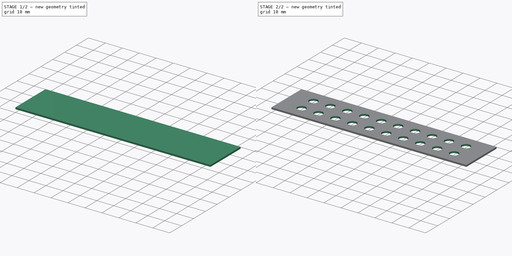
[diagram: build sequence overview — one tinted view per stage of 2, left to right]
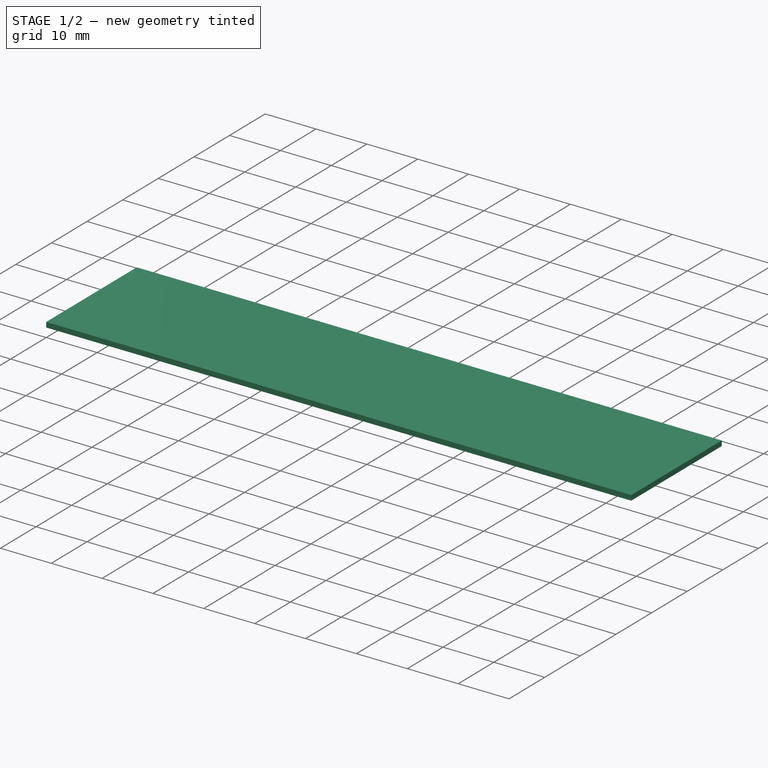
[diagram: stage 1 of 2 — iso view after this stage's code; geometry added in this stage tinted green]
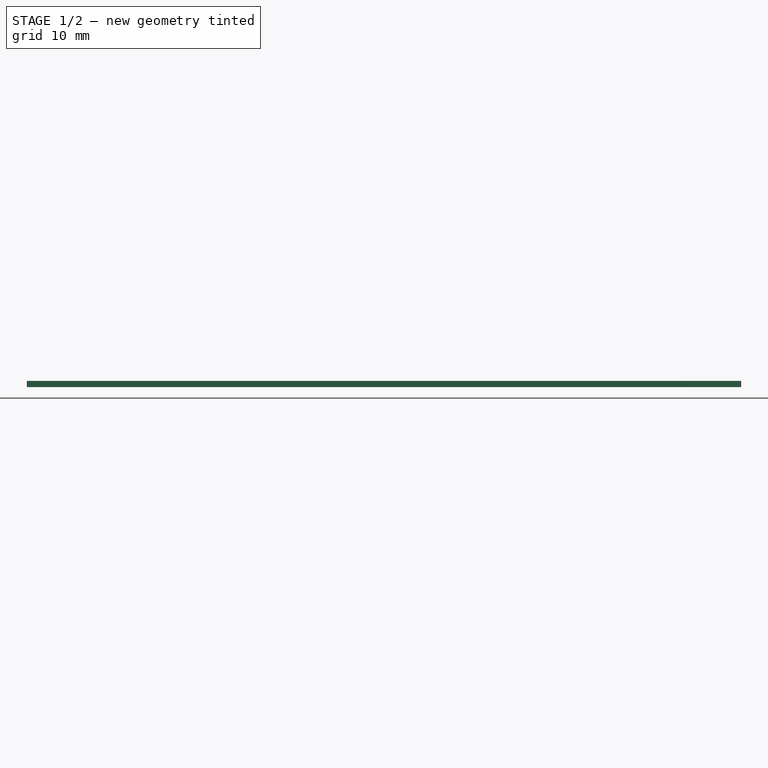
[diagram: stage 1 of 2 — front view after this stage's code; geometry added in this stage tinted green]
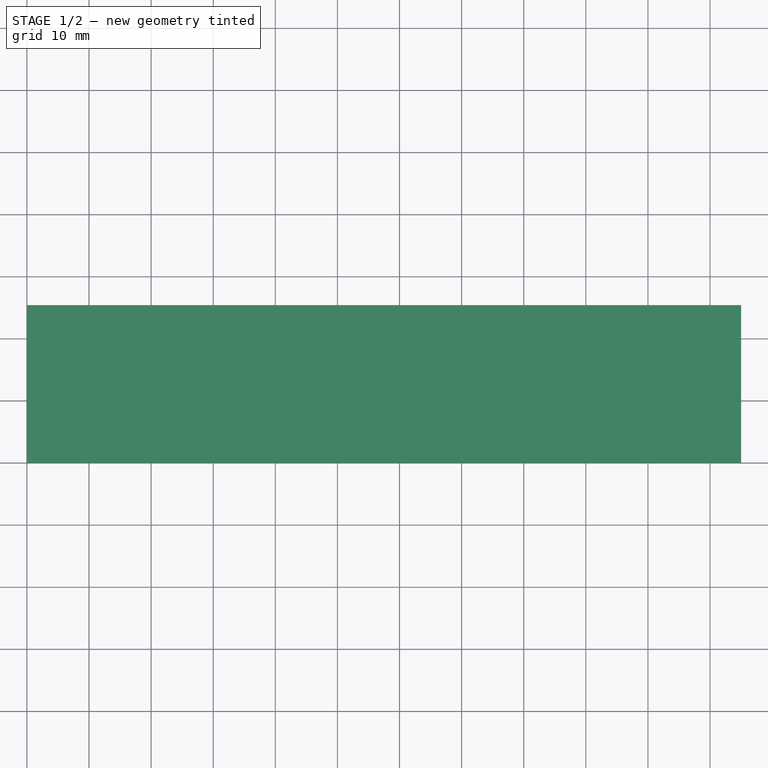
[diagram: stage 1 of 2 — top view after this stage's code; geometry added in this stage tinted green]
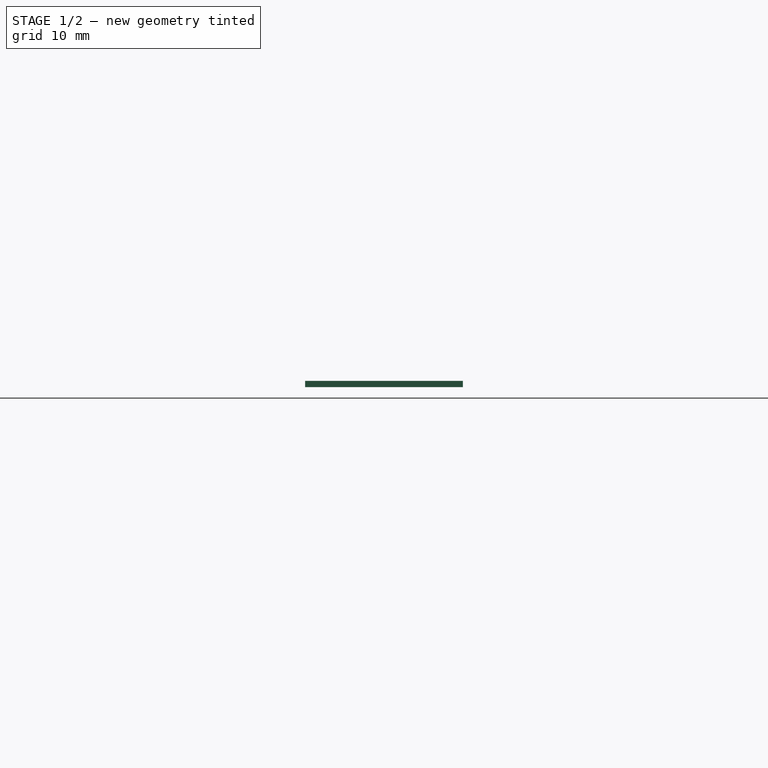
[diagram: stage 1 of 2 — right view after this stage's code; geometry added in this stage tinted green]
FCSTD DOCUMENT  (FreeCAD 0.17R13522 (Git))
Label: SC105
License: All rights reserved
LicenseURL: http://en.wikipedia.org/wiki/All_rights_reserved
objects: Part::Box×1, PartDesign::FeatureBase×1, Sketcher::SketchObject×1, PartDesign::Pocket×1, PartDesign::Body×1
note: 6 computed .brp shape members not serialized (recipe doc carries the construction recipe); baked Part::Feature solids carry a one-line shape summary decoded from their .brp

FEATURE [Part::Box] Box  label="Cube"
  AttacherType = Attacher::AttachEngine3D
  Height = 1
  Length = 115
  Width = 25.4
FEATURE [PartDesign::FeatureBase] BaseFeature
  BaseFeature = -> Box
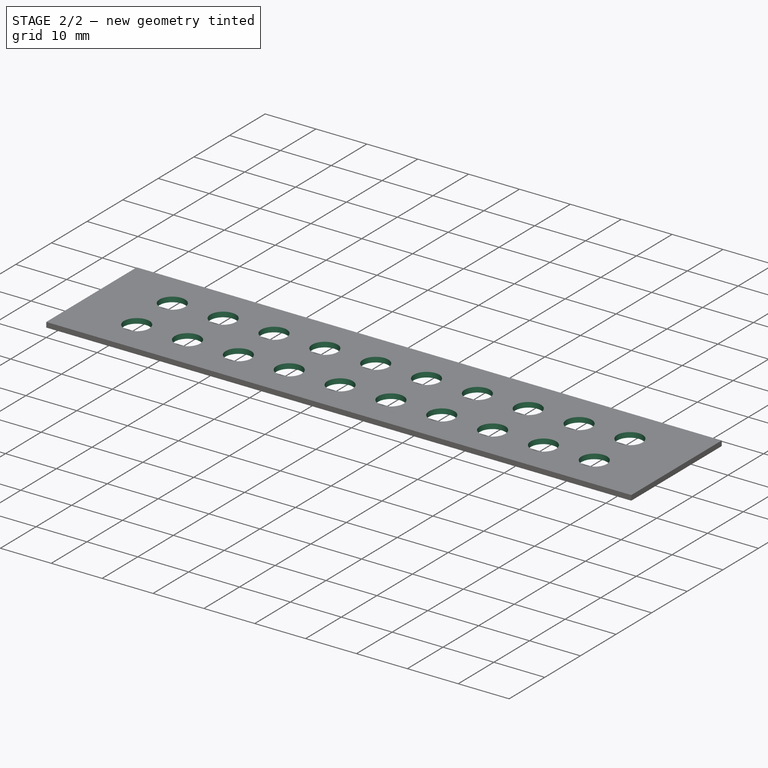
[diagram: stage 2 of 2 — iso view after this stage's code; geometry added in this stage tinted green]
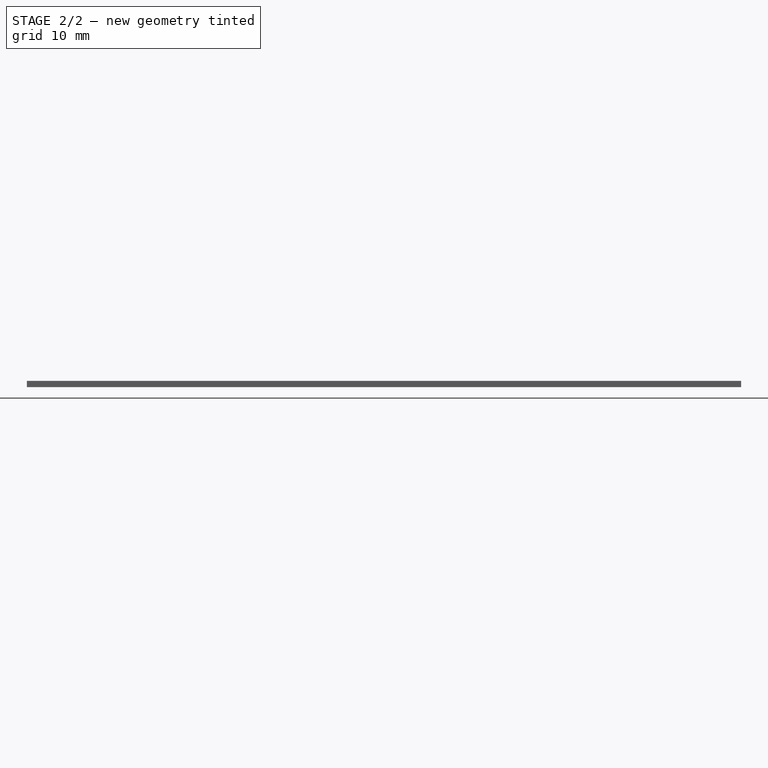
[diagram: stage 2 of 2 — front view after this stage's code; geometry added in this stage tinted green]
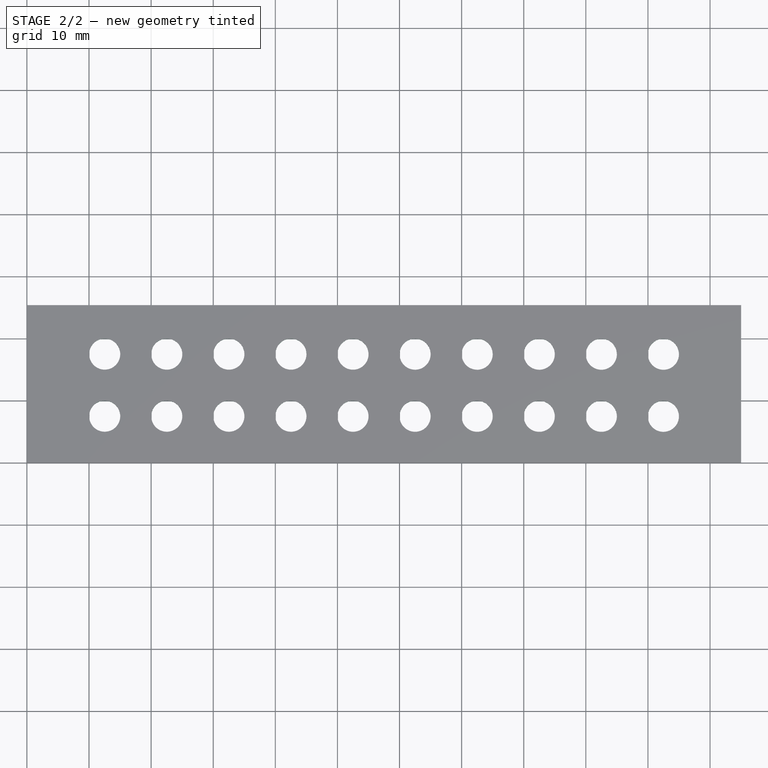
[diagram: stage 2 of 2 — top view after this stage's code; geometry added in this stage tinted green]
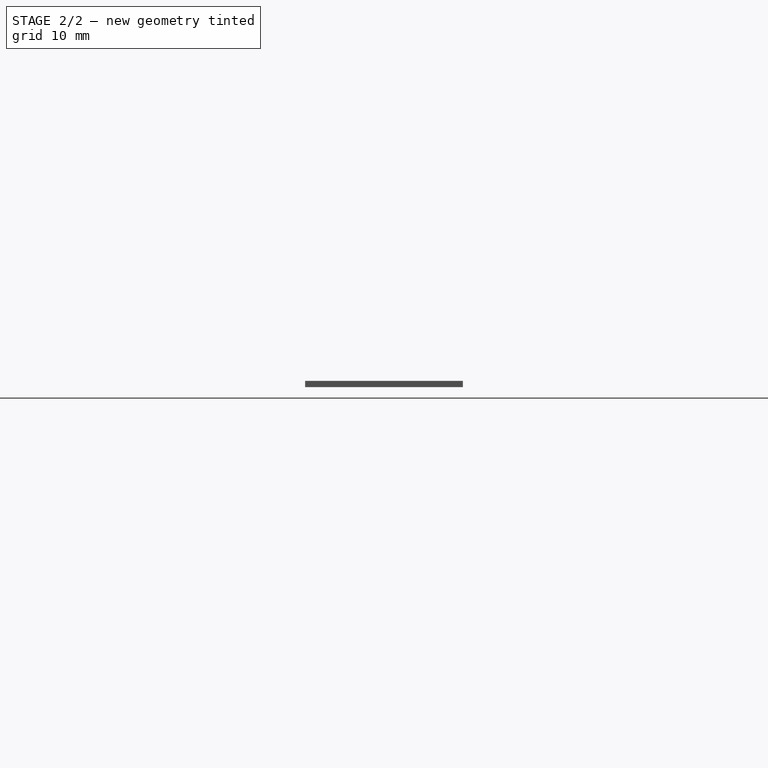
[diagram: stage 2 of 2 — right view after this stage's code; geometry added in this stage tinted green]
FEATURE [Sketcher::SketchObject] Sketch
  MapMode = 5
  Placement = pos=(0,0,1) rot=(0,0,1;0rad)
  Support = -> [BaseFeature]
  sketch-geometry (39):
    g0: Circle CenterX=12.5272 CenterY=17.5046 CenterZ=0 NormalX=0 NormalY=0 NormalZ=1 AngleXU=0 Radius=2.5
    g1: Circle CenterX=22.5233 CenterY=17.5024 CenterZ=0 NormalX=0 NormalY=0 NormalZ=1 AngleXU=0 Radius=2.5
    g2: LineSegment [constr] StartX=12.5272 StartY=17.5046 StartZ=0 EndX=22.5233 EndY=17.5024 EndZ=0
    g3: Circle CenterX=32.5195 CenterY=17.5002 CenterZ=0 NormalX=0 NormalY=0 NormalZ=1 AngleXU=0 Radius=2.5
    g4: LineSegment [constr] StartX=22.5233 StartY=17.5024 StartZ=0 EndX=32.5195 EndY=17.5002 EndZ=0
    g5: Circle CenterX=42.5157 CenterY=17.4981 CenterZ=0 NormalX=0 NormalY=0 NormalZ=1 AngleXU=0 Radius=2.5
    g6: LineSegment [constr] StartX=32.5195 StartY=17.5002 StartZ=0 EndX=42.5157 EndY=17.4981 EndZ=0
    g7: Circle CenterX=52.5119 CenterY=17.4959 CenterZ=0 NormalX=0 NormalY=0 NormalZ=1 AngleXU=0 Radius=2.5
    g8: LineSegment [constr] StartX=42.5157 StartY=17.4981 StartZ=0 EndX=52.5119 EndY=17.4959 EndZ=0
    g9: Circle CenterX=62.5081 CenterY=17.4937 CenterZ=0 NormalX=0 NormalY=0 NormalZ=1 AngleXU=0 Radius=2.5
    g10: LineSegment [constr] StartX=52.5119 StartY=17.4959 StartZ=0 EndX=62.5081 EndY=17.4937 EndZ=0
    g11: Circle CenterX=72.5042 CenterY=17.4915 CenterZ=0 NormalX=0 NormalY=0 NormalZ=1 AngleXU=0 Radius=2.5
    g12: LineSegment [constr] StartX=62.5081 StartY=17.4937 StartZ=0 EndX=72.5042 EndY=17.4915 EndZ=0
    g13: Circle CenterX=82.5004 CenterY=17.4894 CenterZ=0 NormalX=0 NormalY=0 NormalZ=1 AngleXU=0 Radius=2.5
    g14: LineSegment [constr] StartX=72.5042 StartY=17.4915 StartZ=0 EndX=82.5004 EndY=17.4894 EndZ=0
    g15: Circle CenterX=92.4966 CenterY=17.4872 CenterZ=0 NormalX=0 NormalY=0 NormalZ=1 AngleXU=0 Radius=2.5
    g16: LineSegment [constr] StartX=82.5004 StartY=17.4894 StartZ=0 EndX=92.4966 EndY=17.4872 EndZ=0
    g17: Circle CenterX=102.493 CenterY=17.485 CenterZ=0 NormalX=0 NormalY=0 NormalZ=1 AngleXU=0 Radius=2.5
    g18: LineSegment [constr] StartX=92.4966 StartY=17.4872 StartZ=0 EndX=102.493 EndY=17.485 EndZ=0
    g19: Circle CenterX=12.525 CenterY=7.50839 CenterZ=0 NormalX=0 NormalY=0 NormalZ=1 AngleXU=0 Radius=2.5
    g20: LineSegment [constr] StartX=12.5272 StartY=17.5046 StartZ=0 EndX=12.525 EndY=7.50839 EndZ=0
    g21: Circle CenterX=22.5212 CenterY=7.50622 CenterZ=0 NormalX=0 NormalY=0 NormalZ=1 AngleXU=0 Radius=2.5
    g22: LineSegment [constr] StartX=12.525 StartY=7.50839 StartZ=0 EndX=22.5212 EndY=7.50622 EndZ=0
    g23: Circle CenterX=32.5174 CenterY=7.50405 CenterZ=0 NormalX=0 NormalY=0 NormalZ=1 AngleXU=0 Radius=2.5
    g24: LineSegment [constr] StartX=22.5212 StartY=7.50622 StartZ=0 EndX=32.5174 EndY=7.50405 EndZ=0
    g25: Circle CenterX=42.5135 CenterY=7.50187 CenterZ=0 NormalX=0 NormalY=0 NormalZ=1 AngleXU=0 Radius=2.5
    g26: LineSegment [constr] StartX=32.5174 StartY=7.50405 StartZ=0 EndX=42.5135 EndY=7.50187 EndZ=0
    g27: Circle CenterX=52.5097 CenterY=7.4997 CenterZ=0 NormalX=0 NormalY=0 NormalZ=1 AngleXU=0 Radius=2.5
    g28: LineSegment [constr] StartX=42.5135 StartY=7.50187 StartZ=0 EndX=52.5097 EndY=7.4997 EndZ=0
    g29: Circle CenterX=62.5059 CenterY=7.49752 CenterZ=0 NormalX=0 NormalY=0 NormalZ=1 AngleXU=0 Radius=2.5
    g30: LineSegment [constr] StartX=52.5097 StartY=7.4997 StartZ=0 EndX=62.5059 EndY=7.49752 EndZ=0
    g31: Circle CenterX=72.5021 CenterY=7.49535 CenterZ=0 NormalX=0 NormalY=0 NormalZ=1 AngleXU=0 Radius=2.5
    g32: LineSegment [constr] StartX=62.5059 StartY=7.49752 StartZ=0 EndX=72.5021 EndY=7.49535 EndZ=0
    g33: Circle CenterX=82.4982 CenterY=7.49318 CenterZ=0 NormalX=0 NormalY=0 NormalZ=1 AngleXU=0 Radius=2.5
    g34: LineSegment [constr] StartX=72.5021 StartY=7.49535 StartZ=0 EndX=82.4982 EndY=7.49318 EndZ=0
    g35: Circle CenterX=92.4944 CenterY=7.491 CenterZ=0 NormalX=0 NormalY=0 NormalZ=1 AngleXU=0 Radius=2.5
    g36: LineSegment [constr] StartX=82.4982 StartY=7.49318 StartZ=0 EndX=92.4944 EndY=7.491 EndZ=0
    g37: Circle CenterX=102.491 CenterY=7.48883 CenterZ=0 NormalX=0 NormalY=0 NormalZ=1 AngleXU=0 Radius=2.5
    g38: LineSegment [constr] StartX=92.4944 StartY=7.491 StartZ=0 EndX=102.491 EndY=7.48883 EndZ=0
  constraints (96):
    c: Radius(g0) = 2.5
    c: Equal(g0,g1) = 2.5
    c: Coincident(g0,g2)
    c: Coincident(g1,g2)
    c: Distance(g2) = 9.99618
    c: Angle(g2) = -0.000217483
    c: Equal(g0,g3) = 2.5
    c: Coincident(g1,g4)
    c: Coincident(g3,g4)
    c: Equal(g2,g4)
    c: Parallel(g4,g2)
    c: Equal(g0,g5) = 2.5
    c: Coincident(g3,g6)
    c: Coincident(g5,g6)
    c: Equal(g2,g6)
    c: Parallel(g6,g2)
    c: Equal(g0,g7) = 2.5
    c: Coincident(g5,g8)
    c: Coincident(g7,g8)
    c: Equal(g2,g8)
    c: Parallel(g8,g2)
    c: Equal(g0,g9) = 2.5
    c: Coincident(g7,g10)
    c: Coincident(g9,g10)
    c: Equal(g2,g10)
    c: Parallel(g10,g2)
    c: Equal(g0,g11) = 2.5
    c: Coincident(g9,g12)
    c: Coincident(g11,g12)
    c: Equal(g2,g12)
    c: Parallel(g12,g2)
    c: Equal(g0,g13) = 2.5
    c: Coincident(g11,g14)
    c: Coincident(g13,g14)
    c: Equal(g2,g14)
    c: Parallel(g14,g2)
    c: Equal(g0,g15) = 2.5
    c: Coincident(g13,g16)
    c: Coincident(g15,g16)
    c: Equal(g2,g16)
    c: Parallel(g16,g2)
    c: Equal(g0,g17) = 2.5
    c: Coincident(g15,g18)
    c: Coincident(g17,g18)
    c: Equal(g2,g18)
    c: Parallel(g18,g2)
    c: Equal(g0,g19) = 2.5
    c: Coincident(g0,g20)
    c: Coincident(g19,g20)
    c: Equal(g20,g2)
    c: Perpendicular(g20,g2)
    c: Equal(g0,g21) = 2.5
    c: Coincident(g19,g22)
    c: Coincident(g21,g22)
    c: Equal(g2,g22)
    c: Parallel(g22,g2)
    c: Equal(g0,g23) = 2.5
    c: Coincident(g21,g24)
    c: Coincident(g23,g24)
    c: Equal(g2,g24)
    c: Parallel(g24,g2)
    c: Equal(g0,g25) = 2.5
    c: Coincident(g23,g26)
    c: Coincident(g25,g26)
    c: Equal(g2,g26)
    c: Parallel(g26,g2)
    c: Equal(g0,g27) = 2.5
    c: Coincident(g25,g28)
    c: Coincident(g27,g28)
    c: Equal(g2,g28)
    c: Parallel(g28,g2)
    c: Equal(g0,g29) = 2.5
    c: Coincident(g27,g30)
    c: Coincident(g29,g30)
    c: Equal(g2,g30)
    c: Parallel(g30,g2)
    c: Equal(g0,g31) = 2.5
    c: Coincident(g29,g32)
    c: Coincident(g31,g32)
    c: Equal(g2,g32)
    c: Parallel(g32,g2)
    c: Equal(g0,g33) = 2.5
    c: Coincident(g31,g34)
    c: Coincident(g33,g34)
    c: Equal(g2,g34)
    c: Parallel(g34,g2)
    c: Equal(g0,g35) = 2.5
    c: Coincident(g33,g36)
    c: Coincident(g35,g36)
    c: Equal(g2,g36)
    c: Parallel(g36,g2)
    c: Equal(g0,g37) = 2.5
    c: Coincident(g35,g38)
    c: Coincident(g37,g38)
    c: Equal(g2,g38)
    c: Parallel(g38,g2)
FEATURE [PartDesign::Pocket] Pocket
  BaseFeature = -> BaseFeature
  Length = 5
  Length2 = 100
  Profile = -> Sketch
  Type = 0
FEATURE [PartDesign::Body] Body
  BaseFeature = -> Box
  Group = -> [BaseFeature,Sketch,Pocket]
  Origin = -> Origin
  Tip = -> Pocket
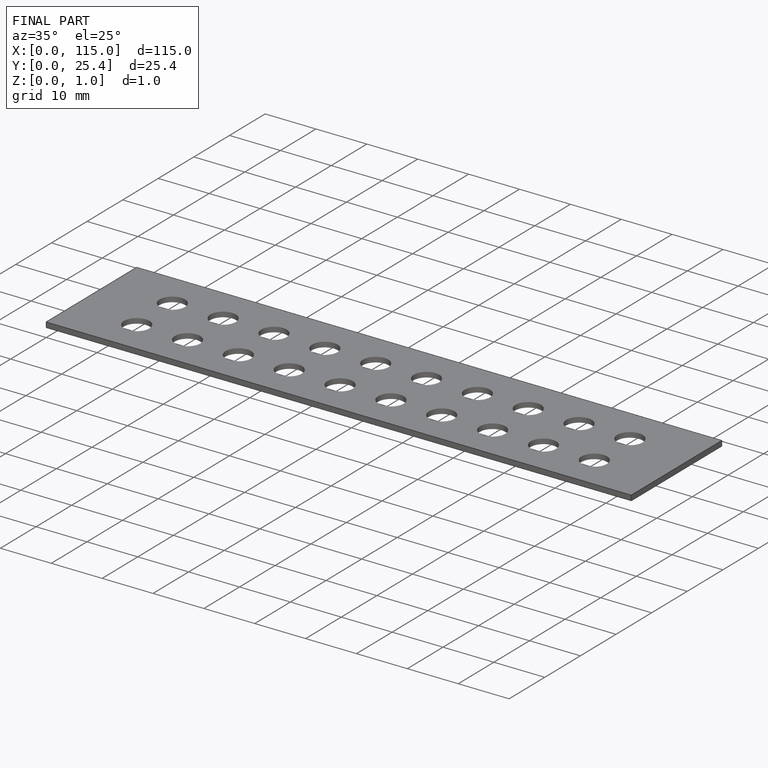
[diagram: finished part — iso view with bounding-box wireframe]
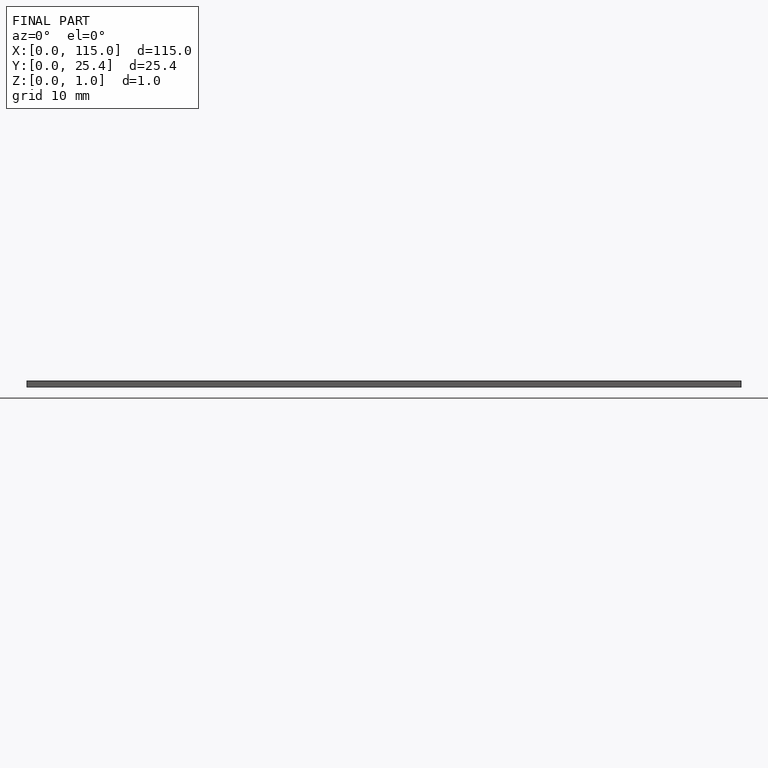
[diagram: finished part — front view with bounding-box wireframe]
